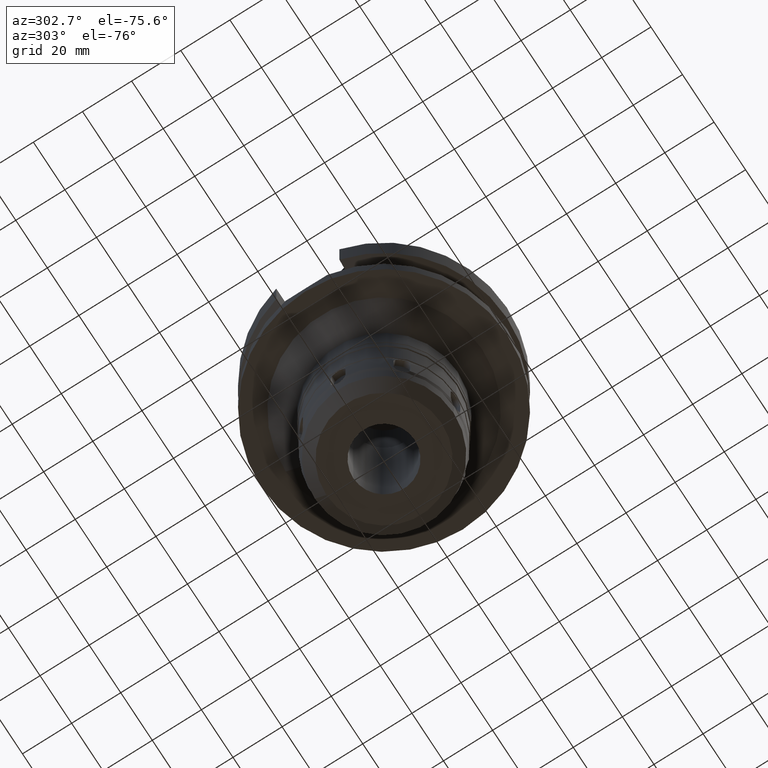
[diagram: clean part render]
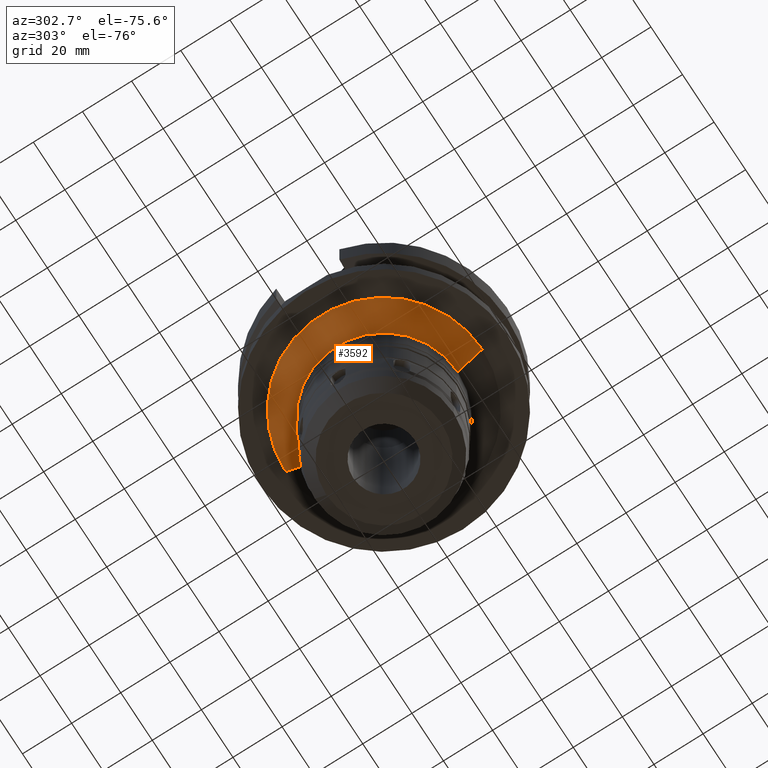
[diagram: same view with one face highlighted and labeled with its STEP entity id]
A machine part, auxiliary view. The second image highlights one B-rep face of the part: STEP entity #3592.
In plain terms, the highlighted conical surface has half-angle 45 deg.
Its self-contained STEP definition (entity closure, byte-faithful):
#1326=DIRECTION('',(0.E0,7.071067811865E-1,-7.071067811865E-1));
#1327=VECTOR('',#1326,1.414213562373E1);
#1328=CARTESIAN_POINT('',(0.E0,-4.E1,-3.8E1));
#1329=LINE('',#1328,#1327);
#1333=CARTESIAN_POINT('',(0.E0,0.E0,-4.8E1));
#1334=DIRECTION('',(0.E0,0.E0,-1.E0));
#1335=DIRECTION('',(0.E0,-1.E0,0.E0));
#1336=AXIS2_PLACEMENT_3D('',#1333,#1334,#1335);
#1341=DIRECTION('',(0.E0,-7.071067811865E-1,-7.071067811865E-1));
#1342=VECTOR('',#1341,1.414213562373E1);
#1343=CARTESIAN_POINT('',(0.E0,4.E1,-3.8E1));
#1344=LINE('',#1343,#1342);
#1372=CARTESIAN_POINT('',(0.E0,0.E0,-3.8E1));
#1373=DIRECTION('',(0.E0,0.E0,-1.E0));
#1374=DIRECTION('',(0.E0,-1.E0,0.E0));
#1375=AXIS2_PLACEMENT_3D('',#1372,#1373,#1374);
#2612=CARTESIAN_POINT('',(0.E0,3.E1,-4.8E1));
#2613=VERTEX_POINT('',#2612);
#2614=CARTESIAN_POINT('',(0.E0,-3.E1,-4.8E1));
#2615=VERTEX_POINT('',#2614);
#2616=CARTESIAN_POINT('',(0.E0,4.E1,-3.8E1));
#2617=VERTEX_POINT('',#2616);
#2618=CARTESIAN_POINT('',(0.E0,-4.E1,-3.8E1));
#2619=VERTEX_POINT('',#2618);
#3578=CARTESIAN_POINT('',(0.E0,0.E0,-4.3E1));
#3579=DIRECTION('',(0.E0,0.E0,1.E0));
#3580=DIRECTION('',(0.E0,1.E0,0.E0));
#3581=AXIS2_PLACEMENT_3D('',#3578,#3579,#3580);
#3582=CONICAL_SURFACE('',#3581,3.5E1,4.5E1);
#3584=ORIENTED_EDGE('',*,*,#3583,.F.);
#3586=ORIENTED_EDGE('',*,*,#3585,.F.);
#3588=ORIENTED_EDGE('',*,*,#3587,.T.);
#3589=ORIENTED_EDGE('',*,*,#3571,.T.);
#3590=EDGE_LOOP('',(#3584,#3586,#3588,#3589));
#3591=FACE_OUTER_BOUND('',#3590,.F.);
#1337=CIRCLE('',#1336,3.E1);
#1376=CIRCLE('',#1375,4.E1);
#3571=EDGE_CURVE('',#2615,#2613,#1337,.T.);
#3583=EDGE_CURVE('',#2617,#2613,#1344,.T.);
#3585=EDGE_CURVE('',#2619,#2617,#1376,.T.);
#3587=EDGE_CURVE('',#2619,#2615,#1329,.T.);
#3592=ADVANCED_FACE('',(#3591),#3582,.T.);